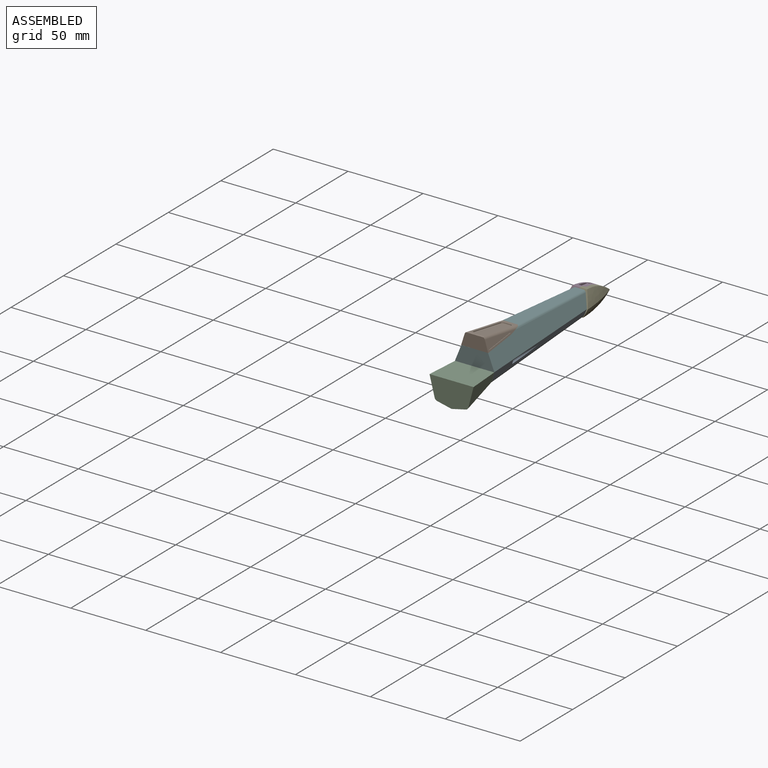
[diagram: assembled view]
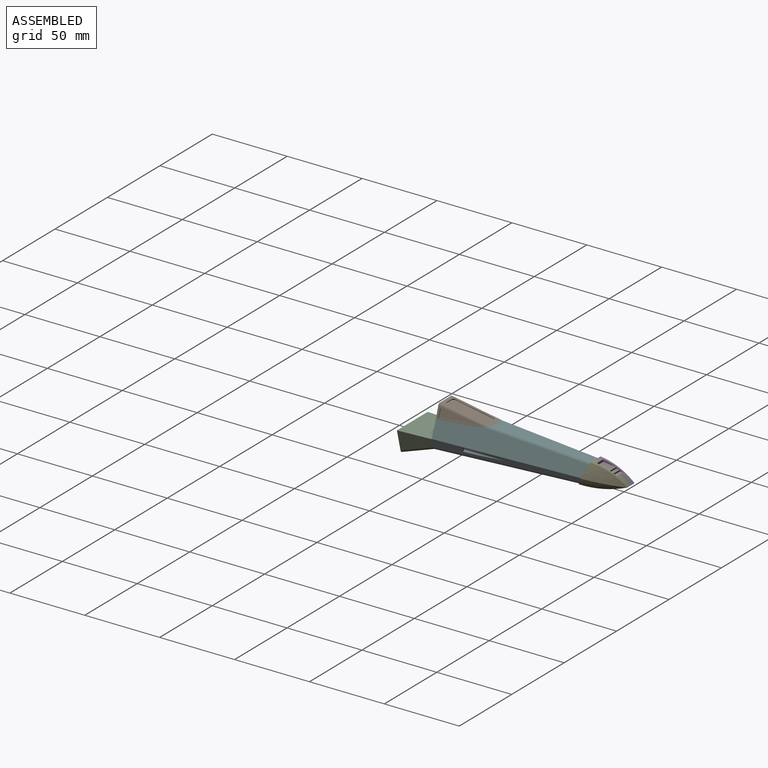
[diagram: assembled view, second angle]
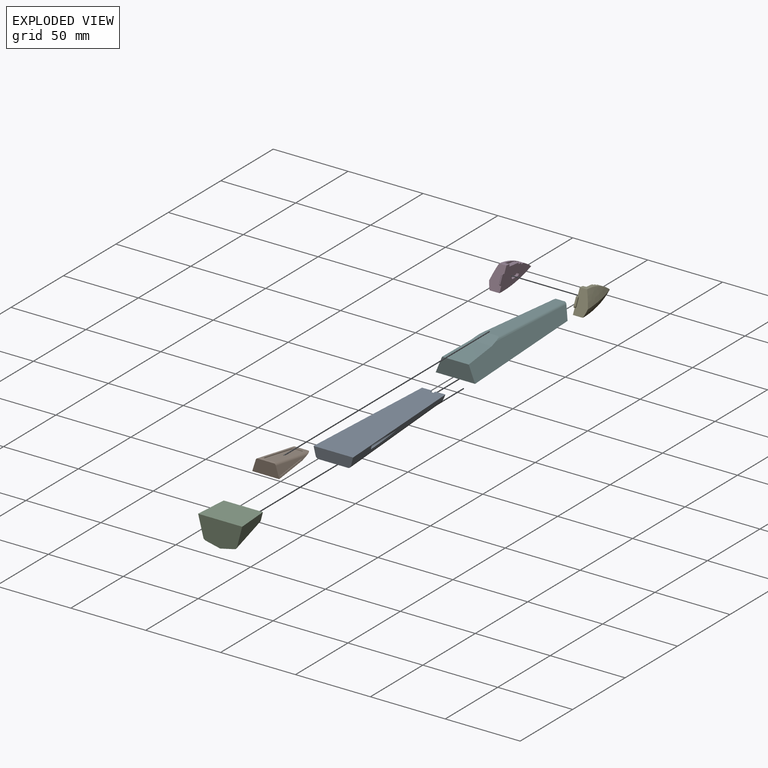
[diagram: exploded view]
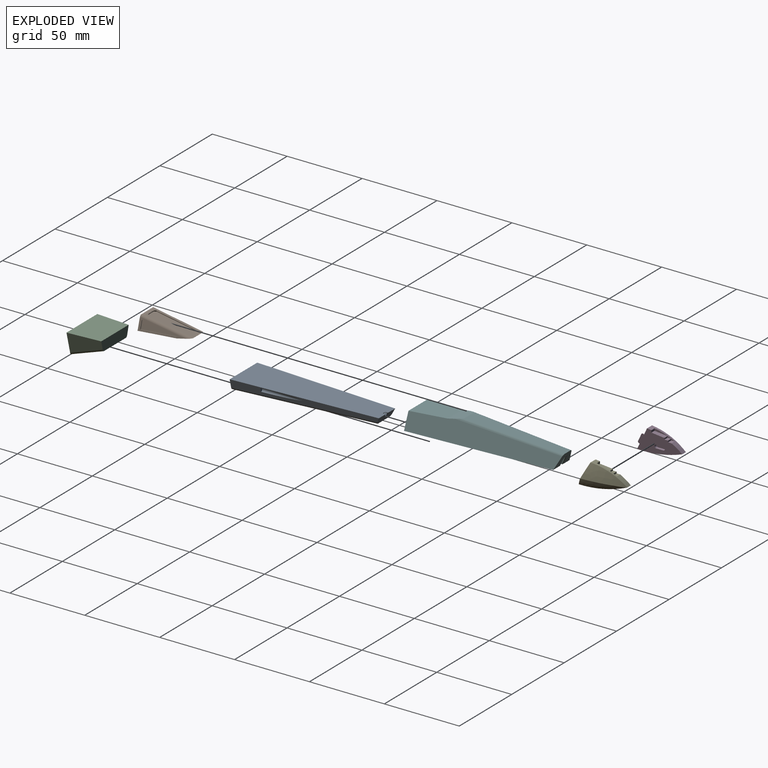
[diagram: exploded view, second angle]
ASSEMBLY  parts=6 mates=5
PART A: 21 faces, bbox 26.7x96.3x7.7 mm
  f0: plane 95.83x6.04mm, normal (0.97,-0.05,0.24), area 366.7mm2, adj f1,f4,f5,f6,f10,f11
  f1: plane 26.37x7.14mm, normal (0,1,0), area 173.2mm2, adj f0,f2,f3,f4,f6,f7
  f2: plane 95.83x6.04mm, normal (-0.97,-0.05,0.24), area 366.7mm2, adj f1,f4,f5,f7,f8,f9
  f3: plane 93.68x19.6mm, normal (0,-0.03,1), area 1404.3mm2, adj f1,f5,f6,f7
  f4: plane 95.84x26.33mm, normal (0,0,-1), area 2004.7mm2, adj f0,f1,f2,f5,f12,f13,f14,f15
  f5: plane 15.97x4.98mm, normal (0,-0.91,0.42), area 69mm2, adj f0,f2,f3,f4,f6,f7,f17,f18
  f6: cylinder r=2.03mm len=94.47mm, axis (0.05,1,0.03), area 253.6mm2, adj f0,f1,f3,f5
  f7: cylinder r=2.03mm len=94.47mm, axis (-0.05,1,0.03), area 253.6mm2, adj f1,f2,f3,f5
  f8: cylinder r=1.27mm len=26.89mm, axis (0,-1,0), area 73.6mm2, adj f2,f9
  f9: plane 2.53x1.75mm, normal (0,-1,0), area 3mm2, adj f2,f8
  f10: cylinder r=1.27mm len=26.89mm, axis (0,-1,0), area 73.6mm2, adj f0,f11
  f11: plane 2.53x1.75mm, normal (0,-1,0), area 3mm2, adj f0,f10
  f12: plane 0.97x0.37mm, normal (-1,0,0), area 0.2mm2, adj f4,f13,f17
  f13: cylinder r=1.08mm len=1.84mm, axis (0,-0.91,0.42), area 2.5mm2, adj f4,f12,f14,f16,f18
  f14: cylinder r=1.08mm len=1.84mm, axis (0,-0.91,0.42), area 2.5mm2, adj f4,f13,f15,f16,f19
  f15: plane 0.98x0.37mm, normal (1,0,0), area 0.2mm2, adj f4,f14,f20
  f16: plane 2.07x0.71mm, normal (0,-0.91,0.42), area 1.2mm2, adj f4,f13,f14
  f17: plane 0.48x0.45mm, normal (-0.71,-0.64,0.3), area 0.2mm2, adj f4,f5,f12,f18
  f18: cone r=1.08mm half-angle=45deg, axis (0,-0.91,0.42), area 0.7mm2, adj f5,f13,f17,f19
  f19: cone r=1.08mm half-angle=45deg, axis (0,-0.91,0.42), area 0.7mm2, adj f5,f14,f18,f20
  f20: plane 0.48x0.45mm, normal (0.71,-0.64,0.3), area 0.2mm2, adj f4,f5,f15,f19
PART B: 26 faces, bbox 16.4x16.8x34.4 mm
  f0: plane 30.19x6.65mm, normal (-0.86,0.51,0.06), area 62mm2, adj f4,f5,f6,f7,f13,f14,f15
  f1: plane 8.65x7.84mm, normal (-0.74,-0.67,0), area 18.5mm2, adj f2,f5,f7,f8
  f2: plane 32.51x10.54mm, normal (-0.73,-0.66,0.17), area 97.7mm2, adj f1,f4,f7,f8,f17,f18,f19,f20
  f3: plane 30.19x7.01mm, normal (0.42,-0.9,0.06), area 64.7mm2, adj f4,f5,f6,f8,f9,f10,f11
  f4: plane 10.7x9.86mm, normal (0.73,0.66,0.19), area 122.9mm2, adj f0,f2,f3,f6,f7,f8
  f5: plane 16.83x16.35mm, normal (0,0,-1), area 131.1mm2, adj f0,f1,f3,f6,f7,f8
  f6: plane 24.74x13.37mm, normal (0.74,0.67,0.05), area 398.9mm2, adj f0,f3,f4,f5
  f7: cylinder r=2.03mm len=34.38mm, axis (-0.13,-0.1,-0.99), area 84.2mm2, adj f0,f1,f2,f4,f5
  f8: cylinder r=2.03mm len=34.38mm, axis (-0.12,-0.12,-0.99), area 84.2mm2, adj f1,f2,f3,f4,f5
  f9: plane 23.25x2.29mm, normal (-0.9,-0.42,-0.07), area 11.8mm2, adj f3,f10,f11,f12
  f10: plane 23.25x3.29mm, normal (0.9,0.41,-0.16), area 12mm2, adj f3,f9,f11,f12
  f11: plane 5.05x2.71mm, normal (-0.03,0.05,1), area 2.7mm2, adj f3,f9,f10,f12
  f12: plane 23.22x4.83mm, normal (0.42,-0.9,0.06), area 62mm2, adj f9,f10,f11
  f13: plane 4.95x3.21mm, normal (0.05,-0.03,1), area 2.8mm2, adj f0,f14,f15,f16
  f14: plane 23.76x3.59mm, normal (0.49,0.86,-0.16), area 12.2mm2, adj f0,f13,f15,f16
  f15: plane 23.76x2.43mm, normal (-0.51,-0.86,-0.07), area 12.1mm2, adj f0,f13,f14,f16
  f16: plane 23.72x4.69mm, normal (-0.86,0.51,0.06), area 64.7mm2, adj f13,f14,f15
  f17: plane 26.57x3.89mm, normal (0.67,-0.74,-0.01), area 13.6mm2, adj f2,f21,f23,f25
  f18: plane 4.37x4.03mm, normal (0.12,0.11,0.99), area 2.8mm2, adj f2,f21,f22,f23
  f19: plane 26.57x3.57mm, normal (-0.67,0.74,-0.01), area 13.6mm2, adj f2,f21,f22,f24
  f20: plane 3.95x3.65mm, normal (-0.12,-0.11,-0.99), area 2.5mm2, adj f2,f21,f24,f25
  f21: plane 28.51x8.37mm, normal (-0.73,-0.66,0.17), area 206.4mm2, adj f17,f18,f19,f20,f22,f23,f24,f25
  f22: plane 1.19x1.11mm, normal (-0.39,0.61,0.69), area 0.7mm2, adj f2,f18,f19,f21
  f23: plane 1.21x1.11mm, normal (0.56,-0.45,0.69), area 0.7mm2, adj f2,f17,f18,f21
  f24: plane 1.21x1.09mm, normal (-0.56,0.44,-0.7), area 0.7mm2, adj f2,f19,f20,f21
  f25: plane 1.19x1.09mm, normal (0.38,-0.6,-0.7), area 0.7mm2, adj f2,f17,f20,f21
PART C: 10 faces, bbox 29.4x23.3x17.1 mm
  f0: plane 26.21x6.86mm, normal (0,-1,0.02), area 166.9mm2, adj f1,f2,f3,f7,f8,f9
  f1: plane 22.36x13.32mm, normal (0.97,-0.06,0.25), area 214.2mm2, adj f0,f2,f6,f9
  f2: plane 29.4x22.06mm, normal (0,-0.02,-1), area 613.7mm2, adj f0,f1,f3,f6
  f3: plane 22.36x13.32mm, normal (-0.97,-0.06,0.25), area 214.2mm2, adj f0,f2,f6,f8
  f4: plane 21x10.13mm, normal (-0.21,-0.31,0.93), area 109.6mm2, adj f6,f7,f8
  f5: plane 21.08x10.14mm, normal (0.21,-0.31,0.93), area 110mm2, adj f6,f7,f9
  f6: plane 29.4x17.08mm, normal (0,1,-0.02), area 401mm2, adj f1,f2,f3,f4,f5,f8,f9
  f7: plane 22.29x21.09mm, normal (0,-0.4,0.92), area 261mm2, adj f0,f4,f5,f8,f9
  f8: cylinder r=2.03mm len=23.25mm, axis (0.02,0.95,0.32), area 52mm2, adj f0,f3,f4,f6,f7
  f9: cylinder r=2.03mm len=23.25mm, axis (-0.02,0.95,0.32), area 52.1mm2, adj f0,f1,f5,f6,f7
PART D: 25 faces, bbox 38.5x16.4x9.5 mm
  f0: plane 30.22x14.25mm, normal (0,0,1), area 247.8mm2, adj f1,f2,f6,f7,f8,f9,f10,f11
  f1: cylinder r=41.93mm len=23.6mm, axis (0,0,1), area 65.3mm2, adj f0,f2,f3,f5,f6,f7,f12
  f2: cylinder r=77.52mm len=30.22mm, axis (0,0,1), area 168.3mm2, adj f0,f1,f3,f4,f12
  f3: bspline ~38.13x10.59mm, area 178.9mm2, adj f1,f2,f4,f12
  f4: bspline ~38.42x7.78mm, area 103.3mm2, adj f2,f3,f12
  f5: plane 13.47x4.32mm, normal (0,0,1), area 11.2mm2, adj f1,f6,f7,f8,f9,f10,f11
  f6: plane 3x2.37mm, normal (0,1,0), area 7.1mm2, adj f0,f1,f5,f11
  f7: plane 3x1.45mm, normal (1,0,0), area 4.4mm2, adj f0,f1,f5,f8
  f8: plane 8.67x3mm, normal (0.1,0.99,0), area 26.2mm2, adj f0,f5,f7,f9
  f9: plane 3x0.97mm, normal (1,0,0), area 2.9mm2, adj f0,f5,f8,f10
  f10: plane 3x2.43mm, normal (0,1,0), area 7.3mm2, adj f0,f5,f9,f11
  f11: plane 3x1.02mm, normal (1,0,0), area 3.1mm2, adj f0,f5,f6,f10
  f12: plane 14.22x8.46mm, normal (-0.91,0.42,0), area 104.1mm2, adj f0,f1,f2,f3,f4,f18,f19,f20
  f13: extruded ~2.16x1.78mm, area 6mm2, adj f0,f14,f16,f17
  f14: plane 4.78x1.78mm, normal (0,-1,0), area 8.5mm2, adj f0,f13,f15,f17
  f15: cylinder r=1.08mm len=2.16mm, axis (0,0,1), area 6mm2, adj f0,f14,f16,f17
  f16: plane 4.78x1.78mm, normal (0,1,0), area 8.5mm2, adj f0,f13,f15,f17
  f17: plane 7.26x2.16mm, normal (0,0,1), area 14mm2, adj f13,f14,f15,f16
  f18: cylinder r=1.02mm len=1.35mm, axis (0.91,-0.42,0), area 1.6mm2, adj f0,f12,f19,f24
  f19: plane 4.76x2.94mm, normal (0,0,-1), area 4.9mm2, adj f12,f18,f20,f23
  f20: cylinder r=1.02mm len=1.35mm, axis (0.91,-0.42,0), area 1.6mm2, adj f0,f12,f19,f22
  f21: plane 5.25x2.45mm, normal (-0.91,0.42,0), area 2.8mm2, adj f0,f22,f23,f24
  f22: cone r=0.51mm half-angle=45deg, axis (0.91,-0.42,0), area 0.9mm2, adj f0,f20,f21,f23
  f23: plane 4.54x2.48mm, normal (-0.64,0.3,-0.71), area 3.4mm2, adj f19,f21,f22,f24
  f24: cone r=0.51mm half-angle=45deg, axis (0.91,-0.42,0), area 0.9mm2, adj f0,f18,f21,f23
PART E: 29 faces, bbox 38.5x16.4x10.6 mm
  f0: plane 30.22x14.25mm, normal (0,0,-1), area 248.8mm2, adj f1,f2,f6,f7,f8,f9,f10,f11
  f1: cylinder r=41.93mm len=23.6mm, axis (0,0,-1), area 65.3mm2, adj f0,f2,f3,f5,f6,f7,f12
  f2: cylinder r=77.52mm len=30.22mm, axis (0,0,-1), area 168.3mm2, adj f0,f1,f3,f4,f12
  f3: bspline ~38.13x10.59mm, area 178.9mm2, adj f1,f2,f4,f12
  f4: bspline ~38.42x7.78mm, area 103.3mm2, adj f2,f3,f12
  f5: plane 13.47x4.32mm, normal (0,0,-1), area 11.2mm2, adj f1,f6,f7,f8,f9,f10,f11
  f6: plane 3x2.37mm, normal (0,1,0), area 7.1mm2, adj f0,f1,f5,f11
  f7: plane 3x1.45mm, normal (1,0,0), area 4.4mm2, adj f0,f1,f5,f8
  f8: plane 8.67x3mm, normal (0.1,0.99,0), area 26.2mm2, adj f0,f5,f7,f9
  f9: plane 3x0.97mm, normal (1,0,0), area 2.9mm2, adj f0,f5,f8,f10
  f10: plane 3x2.43mm, normal (0,1,0), area 7.3mm2, adj f0,f5,f9,f11
  f11: plane 3x1.02mm, normal (1,0,0), area 3.1mm2, adj f0,f5,f6,f10
  f12: plane 14.22x8.46mm, normal (-0.91,0.42,0), area 104.1mm2, adj f0,f1,f2,f3,f4,f22,f23,f24
  f13: cylinder r=1.02mm len=2.03mm, axis (0,0,1), area 3.3mm2, adj f0,f14,f16,f19
  f14: plane 4.75x1.02mm, normal (0,-1,0), area 4.8mm2, adj f0,f13,f15,f21
  f15: cylinder r=1.02mm len=2.03mm, axis (0,0,1), area 3.2mm2, adj f0,f14,f16,f20
  f16: plane 4.78x1.02mm, normal (0,1,0), area 4.9mm2, adj f0,f13,f15,f18
  f17: plane 5.79x1.02mm, normal (0,0,-1), area 5.7mm2, adj f18,f19,f20,f21
  f18: plane 4.78x0.51mm, normal (0,0.71,-0.71), area 3.4mm2, adj f16,f17,f19,f20
  f19: cone r=0.51mm half-angle=45deg, axis (0,0,1), area 1.7mm2, adj f13,f17,f18,f21
  f20: cone r=0.51mm half-angle=45deg, axis (0,0,1), area 1.7mm2, adj f15,f17,f18,f21
  f21: plane 4.76x0.51mm, normal (0,-0.71,-0.71), area 3.4mm2, adj f14,f17,f19,f20
  f22: cylinder r=1.02mm len=1.35mm, axis (0.91,-0.42,0), area 1.6mm2, adj f0,f12,f23,f26
  f23: plane 4.76x2.94mm, normal (0,0,1), area 4.9mm2, adj f12,f22,f24,f27
  f24: cylinder r=1.02mm len=1.35mm, axis (0.91,-0.42,0), area 1.6mm2, adj f0,f12,f23,f28
  f25: plane 5.25x2.45mm, normal (-0.91,0.42,0), area 2.8mm2, adj f0,f26,f27,f28
  f26: cone r=0.51mm half-angle=45deg, axis (0.91,-0.42,0), area 0.9mm2, adj f0,f22,f25,f27
  f27: plane 4.54x2.48mm, normal (-0.64,0.3,0.71), area 3.4mm2, adj f23,f25,f26,f28
  f28: cone r=0.51mm half-angle=45deg, axis (0.91,-0.42,0), area 0.9mm2, adj f0,f24,f25,f27
PART F: 19 faces, bbox 26.3x100x14.5 mm
  f0: plane 15.61x8.9mm, normal (0,0.91,-0.42), area 99.7mm2, adj f1,f3,f4,f5,f8,f9,f16,f17
  f1: plane 99.41x12.58mm, normal (0.93,0.05,0.37), area 1109.1mm2, adj f0,f2,f3,f6,f7,f8
  f2: plane 26.32x10.5mm, normal (0,-1,0), area 231.8mm2, adj f1,f3,f4,f6
  f3: plane 95.83x26.32mm, normal (0,0,-1), area 2005mm2, adj f0,f1,f2,f4,f10,f12,f13,f14
  f4: plane 99.41x12.58mm, normal (-0.93,0.05,0.37), area 1109.1mm2, adj f0,f2,f3,f6,f7,f9
  f5: plane 65.65x8.82mm, normal (0,0.07,1), area 461.6mm2, adj f0,f7,f8,f9
  f6: plane 24.74x17.82mm, normal (0,-0.05,1), area 394.9mm2, adj f1,f2,f4,f7
  f7: plane 14.07x9.6mm, normal (0,-0.18,0.98), area 122.4mm2, adj f1,f4,f5,f6,f8,f9
  f8: cylinder r=2.03mm len=70.62mm, axis (-0.03,1,-0.07), area 162.1mm2, adj f0,f1,f5,f7
  f9: cylinder r=2.03mm len=70.62mm, axis (0.03,1,-0.07), area 162.1mm2, adj f0,f4,f5,f7
  f10: plane 4.97x3.4mm, normal (1,0,0), area 7.3mm2, adj f3,f11,f14,f15,f18
  f11: cylinder r=1.08mm len=2.16mm, axis (0,0.91,-0.42), area 5.2mm2, adj f10,f12,f15,f17
  f12: plane 4.97x3.4mm, normal (-1,0,0), area 7.3mm2, adj f3,f11,f13,f15,f16
  f13: cylinder r=1.08mm len=1.67mm, axis (0,0.91,-0.42), area 0.6mm2, adj f3,f12,f15
  f14: cylinder r=1.08mm len=1.66mm, axis (0,0.91,-0.42), area 0.6mm2, adj f3,f10,f15
  f15: plane 5.94x2.77mm, normal (0,0.91,-0.42), area 13.5mm2, adj f3,f10,f11,f12,f13,f14
  f16: plane 4.32x2.25mm, normal (-0.71,0.64,-0.3), area 1.7mm2, adj f0,f3,f12,f17
  f17: cone r=1.08mm half-angle=45deg, axis (0,0.91,-0.42), area 1.4mm2, adj f0,f11,f16,f18
  f18: plane 4.32x2.25mm, normal (0.71,0.64,-0.3), area 1.7mm2, adj f0,f3,f10,f17
PLACE A rot(axis=(1,0,0),180deg) t=(-24.45,-53.97,3.31)mm
PLACE B rot(axis=(-0.85,0.38,0.38),99.5deg) t=(-24.58,-101.41,16.67)mm
PLACE C rot(axis=(-1,0,0),178.8deg) t=(-24.45,-112.63,3.19)mm
PLACE D rot(axis=(0.58,0.58,0.58),120deg) t=(-25.06,2,-1.72)mm
PLACE E rot(axis=(0.58,0.58,0.58),120deg) t=(-25.06,2,-1.71)mm
PLACE F t=(-24.45,-51.42,3.31)mm
MATE planar C.f0 <-> A.f1  axis (0,1,0) through (-24.45,-101.41,-0.14)mm
MATE fastened E.f12 <-> A.f5  axis (0,-0.91,0.42) through (-16.03,-5.57,3.31)mm
MATE planar B.f5 <-> F.f2  axis (0,-1,0) through (-24.45,-101.41,13.81)mm
MATE fastened D.f15 <-> E.f15  axis (1,0,0) through (-24.45,4.97,3.44)mm
MATE fastened F.f3 <-> A.f4  axis (0,0,-1) through (-24.45,-101.41,3.31)mm
